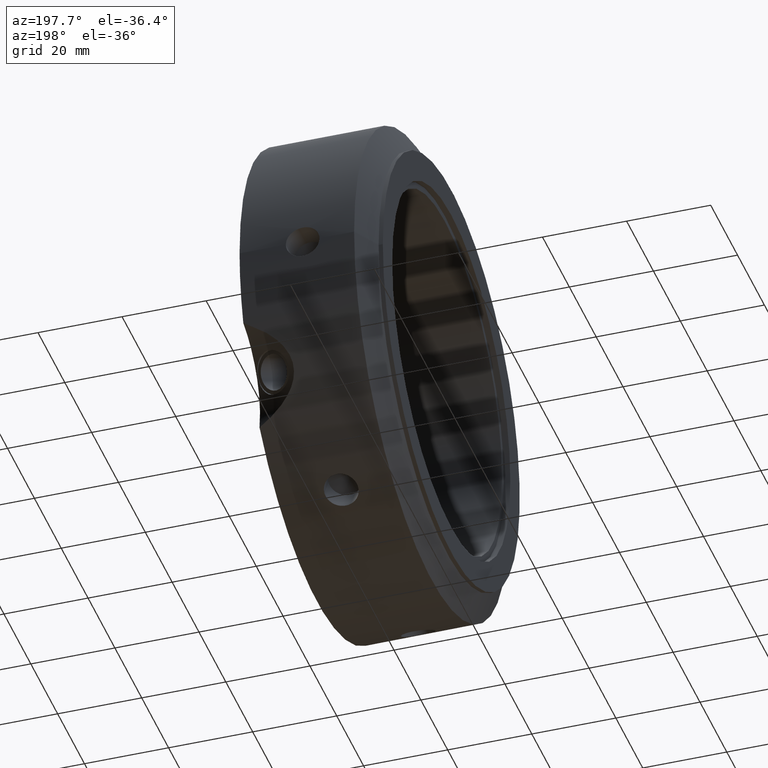
[diagram: clean part render]
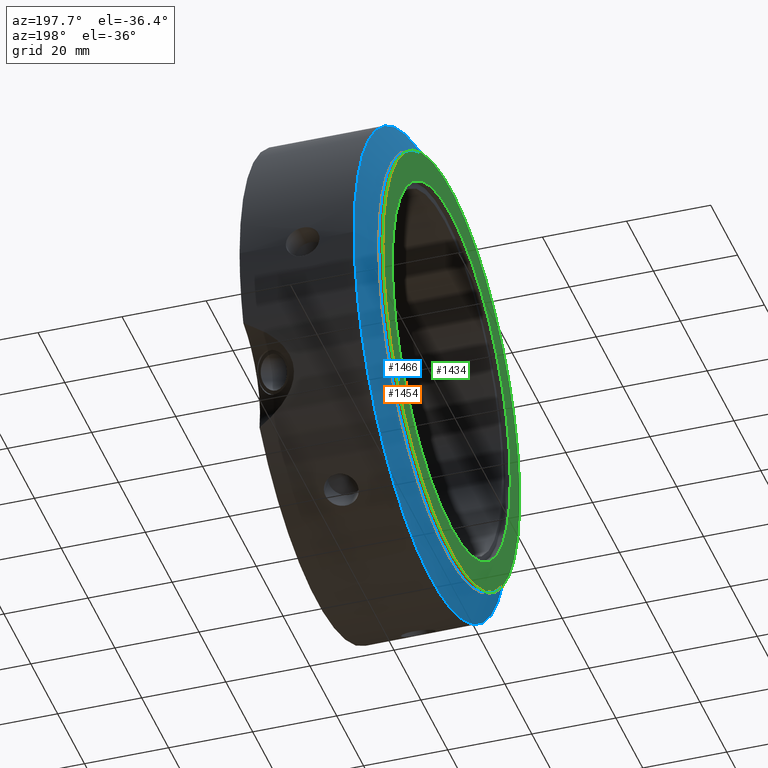
[diagram: same view with three faces highlighted in distinct colors, each labeled with its STEP entity id]
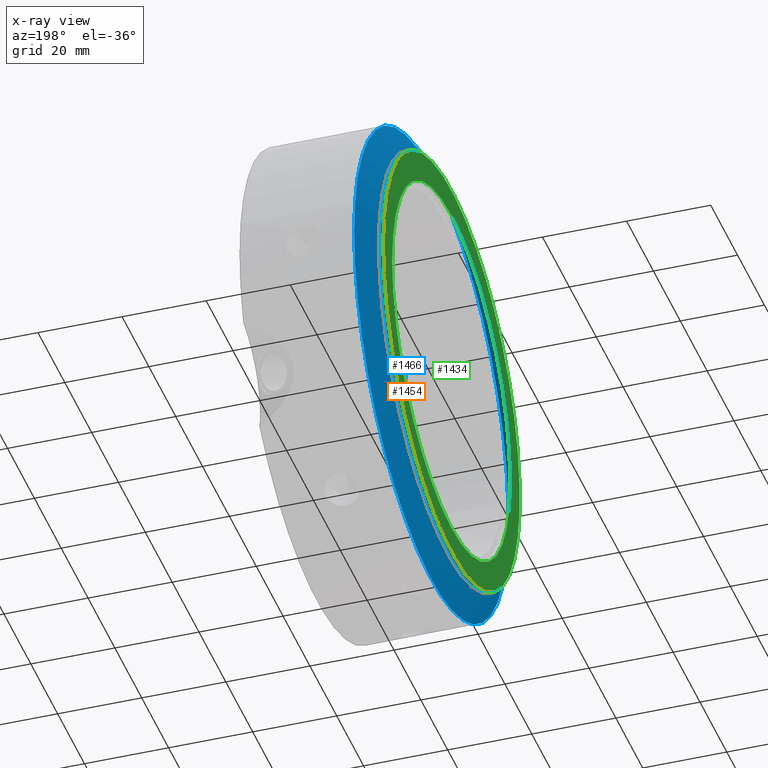
[diagram: x-ray of the same camera — body ghosted, the three highlighted faces saturated]
A machine part, auxiliary view with three faces highlighted in distinct colors.
The next image is the same camera in x-ray (body ghosted, the three faces saturated) — at least one of them is partly hidden behind the body in this view.
Their STEP definitions:

[orange] entity #1454 — the highlighted cylindrical surface (bore or boss wall) has radius 51 mm, axis along (1, 0, 0).
#1420=CARTESIAN_POINT('',(-1.332268E-014,51.000000000000007,0.0));
#1421=VERTEX_POINT('',#1420);
#1422=CARTESIAN_POINT('',(-1.332268E-014,0.0,0.0));
#1423=DIRECTION('',(1.0,0.0,0.0));
#1424=DIRECTION('',(0.0,1.0,0.0));
#1425=AXIS2_PLACEMENT_3D('',#1422,#1423,#1424);
#1426=CIRCLE('',#1425,51.000000000000007);
#1427=EDGE_CURVE('',#1421,#1421,#1426,.T.);
#1435=CARTESIAN_POINT('',(0.499999999999987,0.0,0.0));
#1436=DIRECTION('',(1.0,0.0,0.0));
#1437=DIRECTION('',(0.0,1.0,0.0));
#1438=AXIS2_PLACEMENT_3D('',#1435,#1436,#1437);
#1439=CYLINDRICAL_SURFACE('',#1438,51.000000000000007);
#1440=CARTESIAN_POINT('',(0.999999999999987,51.000000000000007,0.0));
#1441=VERTEX_POINT('',#1440);
#1442=CARTESIAN_POINT('',(0.999999999999987,0.0,0.0));
#1443=DIRECTION('',(1.0,0.0,0.0));
#1444=DIRECTION('',(0.0,1.0,0.0));
#1445=AXIS2_PLACEMENT_3D('',#1442,#1443,#1444);
#1446=CIRCLE('',#1445,51.000000000000007);
#1447=EDGE_CURVE('',#1441,#1441,#1446,.T.);
#1448=ORIENTED_EDGE('',*,*,#1447,.F.);
#1449=EDGE_LOOP('',(#1448));
#1450=FACE_OUTER_BOUND('',#1449,.T.);
#1451=ORIENTED_EDGE('',*,*,#1427,.T.);
#1452=EDGE_LOOP('',(#1451));
#1453=FACE_BOUND('',#1452,.T.);
#1454=ADVANCED_FACE('',(#1450,#1453),#1439,.T.);

[blue] entity #1466 — the highlighted conical surface has half-angle 60 deg.
#1087=CARTESIAN_POINT('',(4.752776749732543,57.5,0.0));
#1088=VERTEX_POINT('',#1087);
#1089=CARTESIAN_POINT('',(4.752776749732543,0.0,0.0));
#1090=DIRECTION('',(1.0,0.0,0.0));
#1091=DIRECTION('',(0.0,1.0,0.0));
#1092=AXIS2_PLACEMENT_3D('',#1089,#1090,#1091);
#1093=CIRCLE('',#1092,57.5);
#1094=EDGE_CURVE('',#1088,#1088,#1093,.T.);
#1440=CARTESIAN_POINT('',(0.999999999999987,51.000000000000007,0.0));
#1441=VERTEX_POINT('',#1440);
#1442=CARTESIAN_POINT('',(0.999999999999987,0.0,0.0));
#1443=DIRECTION('',(1.0,0.0,0.0));
#1444=DIRECTION('',(0.0,1.0,0.0));
#1445=AXIS2_PLACEMENT_3D('',#1442,#1443,#1444);
#1446=CIRCLE('',#1445,51.000000000000007);
#1447=EDGE_CURVE('',#1441,#1441,#1446,.T.);
#1455=CARTESIAN_POINT('',(2.876388374866265,0.0,0.0));
#1456=DIRECTION('',(1.0,0.0,0.0));
#1457=DIRECTION('',(0.0,1.0,0.0));
#1458=AXIS2_PLACEMENT_3D('',#1455,#1456,#1457);
#1459=CONICAL_SURFACE('',#1458,54.250000000000007,60.000000000000057);
#1460=ORIENTED_EDGE('',*,*,#1094,.F.);
#1461=EDGE_LOOP('',(#1460));
#1462=FACE_OUTER_BOUND('',#1461,.T.);
#1463=ORIENTED_EDGE('',*,*,#1447,.T.);
#1464=EDGE_LOOP('',(#1463));
#1465=FACE_BOUND('',#1464,.T.);
#1466=ADVANCED_FACE('',(#1462,#1465),#1459,.T.);

[green] entity #1434 — the highlighted planar face has unit normal (-1, 0, 0).
#1400=CARTESIAN_POINT('',(-1.249001E-014,44.0,0.0));
#1401=VERTEX_POINT('',#1400);
#1402=CARTESIAN_POINT('',(-1.249001E-014,0.0,0.0));
#1403=DIRECTION('',(1.0,0.0,0.0));
#1404=DIRECTION('',(0.0,1.0,0.0));
#1405=AXIS2_PLACEMENT_3D('',#1402,#1403,#1404);
#1406=CIRCLE('',#1405,44.0);
#1407=EDGE_CURVE('',#1401,#1401,#1406,.T.);
#1415=CARTESIAN_POINT('',(-1.290634E-014,47.5,0.0));
#1416=DIRECTION('',(-1.0,0.0,0.0));
#1417=DIRECTION('',(0.0,0.0,1.0));
#1418=AXIS2_PLACEMENT_3D('',#1415,#1416,#1417);
#1419=PLANE('',#1418);
#1420=CARTESIAN_POINT('',(-1.332268E-014,51.000000000000007,0.0));
#1421=VERTEX_POINT('',#1420);
#1422=CARTESIAN_POINT('',(-1.332268E-014,0.0,0.0));
#1423=DIRECTION('',(1.0,0.0,0.0));
#1424=DIRECTION('',(0.0,1.0,0.0));
#1425=AXIS2_PLACEMENT_3D('',#1422,#1423,#1424);
#1426=CIRCLE('',#1425,51.000000000000007);
#1427=EDGE_CURVE('',#1421,#1421,#1426,.T.);
#1428=ORIENTED_EDGE('',*,*,#1427,.F.);
#1429=EDGE_LOOP('',(#1428));
#1430=FACE_OUTER_BOUND('',#1429,.T.);
#1431=ORIENTED_EDGE('',*,*,#1407,.T.);
#1432=EDGE_LOOP('',(#1431));
#1433=FACE_BOUND('',#1432,.T.);
#1434=ADVANCED_FACE('',(#1430,#1433),#1419,.T.);